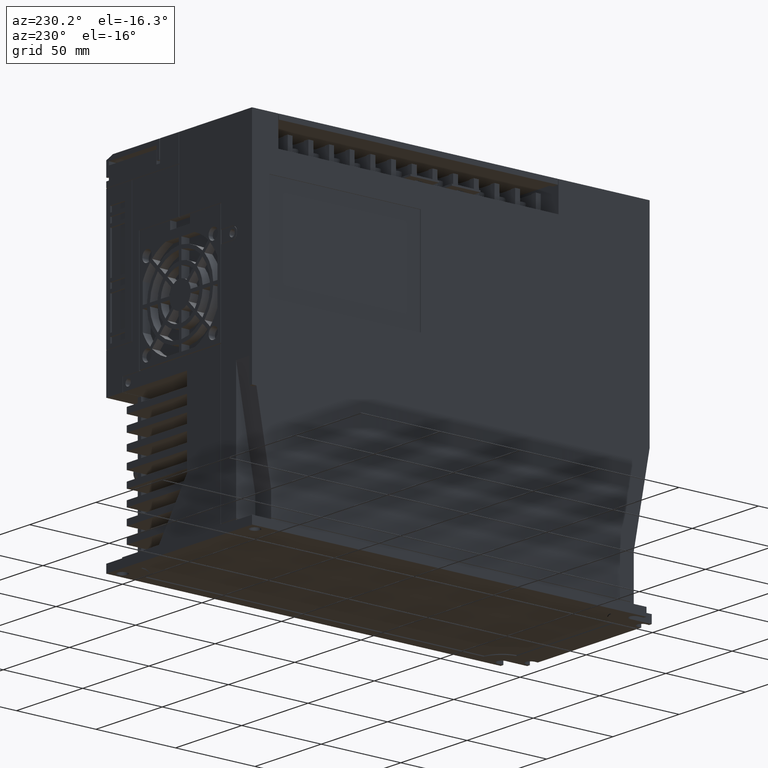
[diagram: clean part render]
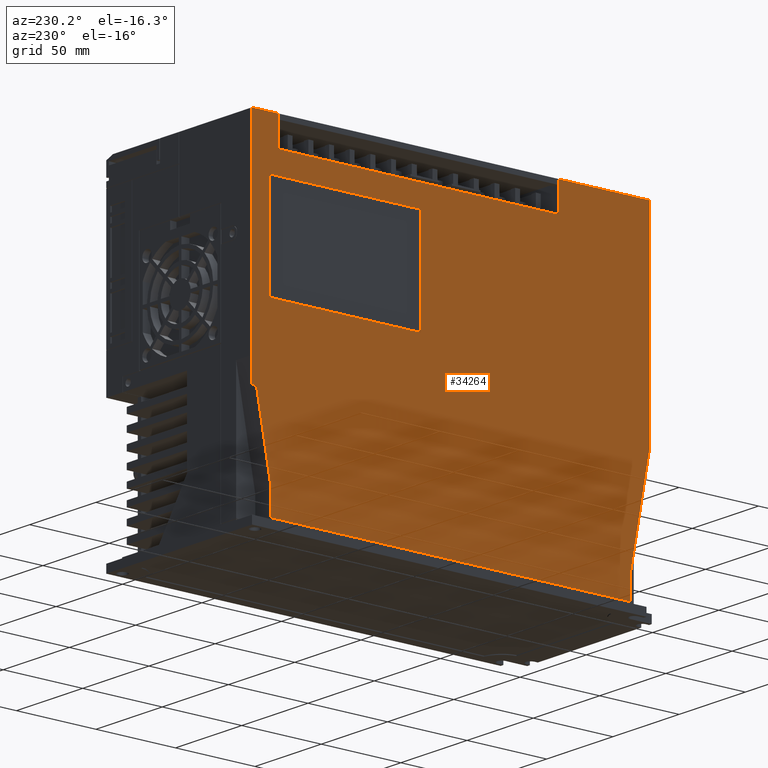
[diagram: same view with one face highlighted and labeled with its STEP entity id]
A machine part, auxiliary view. The second image highlights one B-rep face of the part: STEP entity #34264.
In plain terms, the highlighted planar face has unit normal (1, -0, 0).
Its self-contained STEP definition (entity closure, byte-faithful):
#7344=ORIENTED_EDGE('',*,*,#11526,.F.);
#7345=ORIENTED_EDGE('',*,*,#14434,.F.);
#7346=ORIENTED_EDGE('',*,*,#14067,.F.);
#7347=ORIENTED_EDGE('',*,*,#14435,.F.);
#7348=ORIENTED_EDGE('',*,*,#14436,.F.);
#7349=ORIENTED_EDGE('',*,*,#14437,.T.);
#7350=ORIENTED_EDGE('',*,*,#12993,.F.);
#7351=ORIENTED_EDGE('',*,*,#11359,.T.);
#7352=ORIENTED_EDGE('',*,*,#14438,.T.);
#7353=ORIENTED_EDGE('',*,*,#13203,.F.);
#7354=ORIENTED_EDGE('',*,*,#12385,.T.);
#7355=ORIENTED_EDGE('',*,*,#13762,.T.);
#7356=ORIENTED_EDGE('',*,*,#12439,.F.);
#7357=ORIENTED_EDGE('',*,*,#11458,.T.);
#7358=ORIENTED_EDGE('',*,*,#11796,.F.);
#7359=ORIENTED_EDGE('',*,*,#12989,.F.);
#7360=ORIENTED_EDGE('',*,*,#13126,.F.);
#11359=EDGE_CURVE('',#15933,#15943,#19167,.T.);
#11458=EDGE_CURVE('',#16034,#16033,#19245,.T.);
#11526=EDGE_CURVE('',#16093,#16094,#19301,.T.);
#11796=EDGE_CURVE('',#16324,#16033,#19547,.T.);
#12385=EDGE_CURVE('',#16799,#16798,#20054,.T.);
#12439=EDGE_CURVE('',#16034,#16839,#20107,.T.);
#12989=EDGE_CURVE('',#17209,#16324,#20601,.T.);
#12993=EDGE_CURVE('',#15933,#17207,#20605,.T.);
#13126=EDGE_CURVE('',#17298,#17209,#20731,.T.);
#13203=EDGE_CURVE('',#16799,#17349,#20796,.T.);
#13762=EDGE_CURVE('',#16798,#16839,#21328,.T.);
#14067=EDGE_CURVE('',#17821,#17822,#21600,.T.);
#14434=EDGE_CURVE('',#17822,#16093,#21932,.T.);
#14435=EDGE_CURVE('',#16094,#17821,#21933,.T.);
#14436=EDGE_CURVE('',#17976,#17298,#21934,.T.);
#14437=EDGE_CURVE('',#17976,#17207,#21935,.T.);
#14438=EDGE_CURVE('',#15943,#17349,#21936,.T.);
#15933=VERTEX_POINT('',#48845);
#15943=VERTEX_POINT('',#48866);
#16033=VERTEX_POINT('',#49066);
#16034=VERTEX_POINT('',#49068);
#16093=VERTEX_POINT('',#49212);
#16094=VERTEX_POINT('',#49213);
#16324=VERTEX_POINT('',#49770);
#16798=VERTEX_POINT('',#50972);
#16799=VERTEX_POINT('',#50974);
#16839=VERTEX_POINT('',#51077);
#17207=VERTEX_POINT('',#52148);
#17209=VERTEX_POINT('',#52152);
#17298=VERTEX_POINT('',#52418);
#17349=VERTEX_POINT('',#52567);
#17821=VERTEX_POINT('',#54246);
#17822=VERTEX_POINT('',#54247);
#17976=VERTEX_POINT('',#54988);
#19167=LINE('',#48867,#23402);
#19245=LINE('',#49067,#23480);
#19301=LINE('',#49211,#23536);
#19547=LINE('',#49771,#23782);
#20054=LINE('',#50973,#24289);
#20107=LINE('',#51076,#24342);
#20601=LINE('',#52153,#24836);
#20605=LINE('',#52159,#24840);
#20731=LINE('',#52419,#24966);
#20796=LINE('',#52566,#25031);
#21328=LINE('',#53632,#25563);
#21600=LINE('',#54245,#25835);
#21932=LINE('',#54985,#26167);
#21933=LINE('',#54986,#26168);
#21934=LINE('',#54987,#26169);
#21935=LINE('',#54989,#26170);
#21936=LINE('',#54990,#26171);
#23402=VECTOR('',#39183,1000.);
#23480=VECTOR('',#39325,1000.);
#23536=VECTOR('',#39439,1000.);
#23782=VECTOR('',#39849,1000.);
#24289=VECTOR('',#40798,1000.);
#24342=VECTOR('',#40871,1000.);
#24836=VECTOR('',#41789,1000.);
#24840=VECTOR('',#41793,1000.);
#24966=VECTOR('',#42013,1000.);
#25031=VECTOR('',#42142,1000.);
#25563=VECTOR('',#43104,1000.);
#25835=VECTOR('',#43752,1000.);
#26167=VECTOR('',#44590,1000.);
#26168=VECTOR('',#44591,1000.);
#26169=VECTOR('',#44592,1000.);
#26170=VECTOR('',#44593,1000.);
#26171=VECTOR('',#44594,1000.);
#28189=EDGE_LOOP('',(#7344,#7345,#7346,#7347));
#28190=EDGE_LOOP('',(#7348,#7349,#7350,#7351,#7352,#7353,#7354,#7355,#7356,
#7357,#7358,#7359,#7360));
#30532=FACE_BOUND('',#28189,.T.);
#30533=FACE_BOUND('',#28190,.T.);
#32419=PLANE('',#36643);
#34264=ADVANCED_FACE('',(#30532,#30533),#32419,.F.);
#36643=AXIS2_PLACEMENT_3D('',#54984,#44588,#44589);
#39183=DIRECTION('',(0.,0.,-1.));
#39325=DIRECTION('',(-9.76541626719129E-18,-0.181547479456103,0.983382180387227));
#39439=DIRECTION('',(1.20400721704629E-32,2.23835287222814E-16,1.));
#39849=DIRECTION('',(0.,0.,-1.));
#40798=DIRECTION('',(0.,0.,-1.));
#40871=DIRECTION('',(0.,0.,-1.));
#41789=DIRECTION('',(-5.37898752240871E-17,-1.,0.));
#41793=DIRECTION('',(-5.37898752240871E-17,-1.,0.));
#42013=DIRECTION('',(0.,0.,1.));
#42142=DIRECTION('',(9.76541626719129E-18,0.181547479456103,0.983382180387227));
#43104=DIRECTION('',(-5.37898752240871E-17,-1.,0.));
#43752=DIRECTION('',(1.58074236143375E-51,2.93873587705572E-35,-1.));
#44588=DIRECTION('',(1.,-5.37898752240871E-17,0.));
#44589=DIRECTION('',(0.,0.,1.));
#44590=DIRECTION('',(-5.37898752240871E-17,-1.,1.46081976924363E-16));
#44591=DIRECTION('',(5.37898752240871E-17,1.,0.));
#44592=DIRECTION('',(-5.37898752240871E-17,-1.,0.));
#44593=DIRECTION('',(0.,0.,1.));
#44594=DIRECTION('',(-5.37898752240871E-17,-1.,0.));
#48845=CARTESIAN_POINT('',(-105.000000000007,6.0000000000063,210.000000000007));
#48866=CARTESIAN_POINT('',(-105.000000000007,6.00000000000667,70.5000000000067));
#48867=CARTESIAN_POINT('',(-105.,6.00000000000001,-280.471032372329));
#49066=CARTESIAN_POINT('',(-105.000000000007,-244.000000000009,85.5000000000028));
#49067=CARTESIAN_POINT('',(-105.,-178.926663939021,-266.980570330302));
#49068=CARTESIAN_POINT('',(-105.000000000007,-232.000000000009,20.5000000000028));
#49211=CARTESIAN_POINT('',(-105.,-100.,116.5));
#49212=CARTESIAN_POINT('',(-105.000000000007,-100.000000000007,116.500000000007));
#49213=CARTESIAN_POINT('',(-105.000000000007,-100.000000000006,178.500000000007));
#49770=CARTESIAN_POINT('',(-105.000000000007,-244.000000000007,210.000000000007));
#49771=CARTESIAN_POINT('',(-105.,-244.,483.130005674953));
#50972=CARTESIAN_POINT('',(-105.000000000007,-6.00000000000662,5.70000000000667));
#50973=CARTESIAN_POINT('',(-105.,-6.00000000000001,-280.471032372329));
#50974=CARTESIAN_POINT('',(-105.000000000007,-6.00000000001049,20.500000000004));
#51076=CARTESIAN_POINT('',(-105.,-232.,20.5));
#51077=CARTESIAN_POINT('',(-105.000000000007,-232.000000000007,5.70000000000667));
#52148=CARTESIAN_POINT('',(-105.000000000007,-10.5000000000067,210.000000000007));
#52152=CARTESIAN_POINT('',(-105.000000000007,-186.700000000007,210.000000000007));
#52153=CARTESIAN_POINT('',(-105.,5.64793689852914E-15,210.));
#52159=CARTESIAN_POINT('',(-105.,5.64793689852914E-15,210.));
#52418=CARTESIAN_POINT('',(-105.000000000006,-186.700000000007,192.200000000007));
#52419=CARTESIAN_POINT('',(-105.,-186.7,192.2));
#52566=CARTESIAN_POINT('',(-105.,6.,85.5));
#52567=CARTESIAN_POINT('',(-105.000000000007,3.23076923076887,70.5000000000073));
#53632=CARTESIAN_POINT('',(-105.,-252.,5.69999999999998));
#54245=CARTESIAN_POINT('',(-105.,-5.,116.5));
#54246=CARTESIAN_POINT('',(-105.000000000007,-5.00000000000667,178.500000000007));
#54247=CARTESIAN_POINT('',(-105.000000000007,-5.00000000000667,116.500000000007));
#54984=CARTESIAN_POINT('',(-105.,-252.,-280.471032372329));
#54985=CARTESIAN_POINT('',(-105.,-5.,116.5));
#54986=CARTESIAN_POINT('',(-105.,-5.,178.5));
#54987=CARTESIAN_POINT('',(-105.,-186.7,192.2));
#54988=CARTESIAN_POINT('',(-105.000000000007,-10.5000000000067,192.200000000007));
#54989=CARTESIAN_POINT('',(-105.,-10.5,-280.471032372329));
#54990=CARTESIAN_POINT('',(-105.,-252.,70.5));